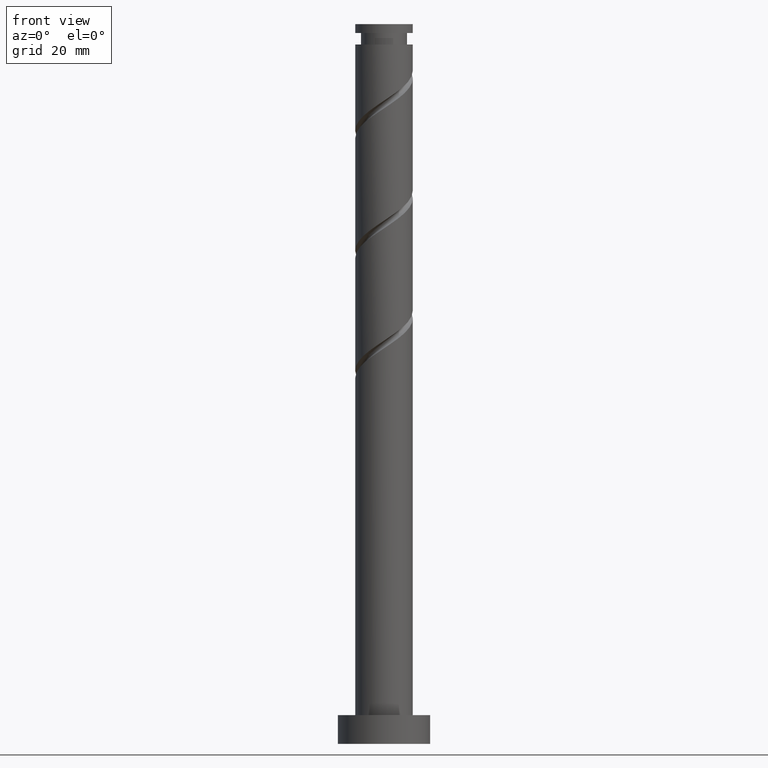
[diagram: clean part render]
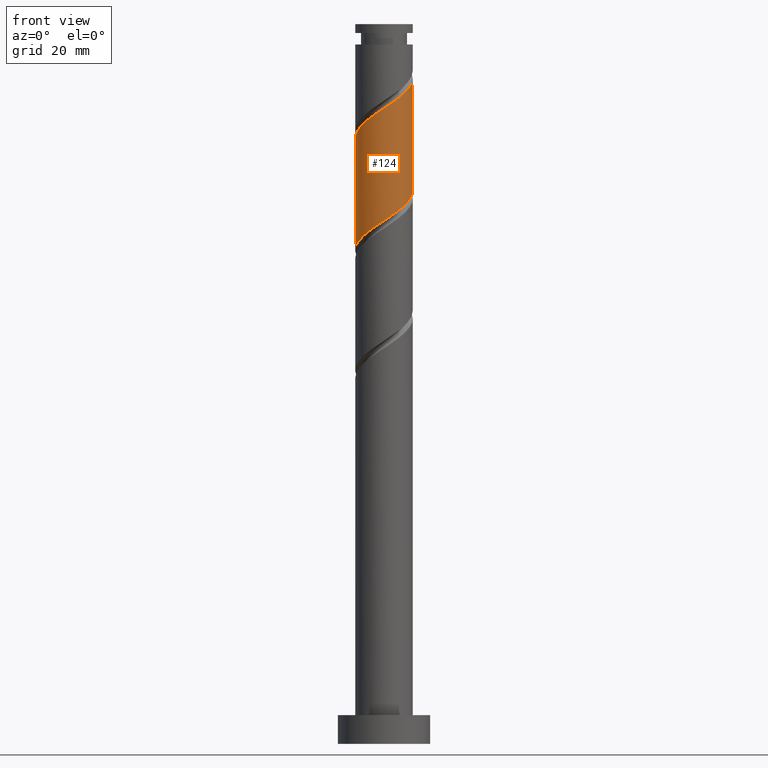
[diagram: same view with one face highlighted and labeled with its STEP entity id]
A machine part, front view. The second image highlights one B-rep face of the part: STEP entity #124.
In plain terms, the highlighted cylindrical surface (edge-blend (fillet) strip) has radius 5 mm, axis along (-0, -0, -1).
Its self-contained STEP definition (entity closure, byte-faithful):
#38 = VECTOR ( 'NONE', #793, 1000.000000000000000 ) ;
#84 = CARTESIAN_POINT ( 'NONE',  ( 1.771071194696850037, -4.742409471643930452, 111.5590371129979559 ) ) ;
#93 = CARTESIAN_POINT ( 'NONE',  ( -5.000000000000006217, -0.5025189076296163737, 105.4993725802688829 ) ) ;
#107 = EDGE_LOOP ( 'NONE', ( #327, #1390, #160, #1034 ) ) ;
#118 = CARTESIAN_POINT ( 'NONE',  ( 4.220345042522133383, -2.795680327841834956, 113.6423704463312845 ) ) ;
#122 = CARTESIAN_POINT ( 'NONE',  ( 4.352708902590734397, -2.460472558129309206, 94.37153711299794168 ) ) ;
#124 = ADVANCED_FACE ( 'NONE', ( #357 ), #1198, .T. ) ;
#160 = ORIENTED_EDGE ( 'NONE', *, *, #578, .T. ) ;
#202 = CARTESIAN_POINT ( 'NONE',  ( -5.000000000000000888, 0.000000000000000000, 125.0000000000000000 ) ) ;
#212 = CARTESIAN_POINT ( 'NONE',  ( -4.742409471643930452, -1.771071194696850259, 106.3507037796645989 ) ) ;
#218 = CARTESIAN_POINT ( 'NONE',  ( 4.742409471643924235, -1.771071194696849815, 94.89237044633128448 ) ) ;
#222 = CARTESIAN_POINT ( 'NONE',  ( 4.967644957101780001, -0.5678939867451784362, 115.2048704463312703 ) ) ;
#226 = CARTESIAN_POINT ( 'NONE',  ( 1.354691653006744989, -4.877699385847468427, 91.76737044633128448 ) ) ;
#236 = CARTESIAN_POINT ( 'NONE',  ( -3.379344330689691756, -3.685109482041953211, 107.9132037796646131 ) ) ;
#258 = DIRECTION ( 'NONE',  ( -0.000000000000000000, -0.000000000000000000, -1.000000000000000000 ) ) ;
#271 = CARTESIAN_POINT ( 'NONE',  ( -5.000000000000000000, 6.686923841309805221E-15, 85.66133955446819925 ) ) ;
#279 = CARTESIAN_POINT ( 'NONE',  ( -4.877699385847470204, -1.354691653006745433, 86.55903711299792747 ) ) ;
#315 = LINE ( 'NONE', #202, #38 ) ;
#327 = ORIENTED_EDGE ( 'NONE', *, *, #809, .F. ) ;
#344 = CARTESIAN_POINT ( 'NONE',  ( 2.795680327841830515, -4.220345042522129830, 92.80903711299794168 ) ) ;
#352 = CARTESIAN_POINT ( 'NONE',  ( -1.771071194696849149, -4.742409471643924235, 89.68403711299794168 ) ) ;
#356 = CARTESIAN_POINT ( 'NONE',  ( -2.075185990424292193, -4.549022214184804014, 108.9548704463312845 ) ) ;
#357 = FACE_OUTER_BOUND ( 'NONE', #107, .T. ) ;
#379 = LINE ( 'NONE', #840, #1461 ) ;
#417 = CARTESIAN_POINT ( 'NONE',  ( -4.220345042522129830, -2.795680327841830515, 87.60070377966461308 ) ) ;
#459 = CARTESIAN_POINT ( 'NONE',  ( -1.354691653006748320, -4.877699385847474645, 109.4757037796646415 ) ) ;
#469 = CARTESIAN_POINT ( 'NONE',  ( 0.000000000000000000, 0.000000000000000000, 125.0000000000000000 ) ) ;
#472 = CARTESIAN_POINT ( 'NONE',  ( -0.9949874371066216305, -4.900000000000000355, 90.20487044633125606 ) ) ;
#516 = CARTESIAN_POINT ( 'NONE',  ( -5.000000000000000000, -0.2848686872321604668, 85.85085064367548568 ) ) ;
#531 = CARTESIAN_POINT ( 'NONE',  ( 5.000000000000007994, 2.129020595215218140E-15, 115.5817346715276699 ) ) ;
#566 = CARTESIAN_POINT ( 'NONE',  ( -2.795680327841834512, -4.220345042522133383, 108.4340371129979275 ) ) ;
#578 = EDGE_CURVE ( 'NONE', #1042, #1304, #315, .T. ) ;
#587 = VERTEX_POINT ( 'NONE', #1281 ) ;
#589 = CARTESIAN_POINT ( 'NONE',  ( 5.000000000000007994, -0.2848686872321627428, 115.3922235823203835 ) ) ;
#594 = CARTESIAN_POINT ( 'NONE',  ( 3.379344330689686426, -3.685109482041949658, 93.32987044633127027 ) ) ;
#608 = DIRECTION ( 'NONE',  ( -0.000000000000000000, -0.000000000000000000, -1.000000000000000000 ) ) ;
#639 = CARTESIAN_POINT ( 'NONE',  ( -3.685109482041949658, -3.379344330689686426, 88.12153711299797010 ) ) ;
#687 = AXIS2_PLACEMENT_3D ( 'NONE', #469, #608, #1092 ) ;
#697 = CARTESIAN_POINT ( 'NONE',  ( 3.963008333537541894, -3.149873921561769041, 93.85070377966461308 ) ) ;
#701 = CARTESIAN_POINT ( 'NONE',  ( -5.000000000000008882, -2.848689528809094394E-15, 105.1650680048610411 ) ) ;
#703 = EDGE_CURVE ( 'NONE', #587, #1304, #988, .T. ) ;
#706 = CARTESIAN_POINT ( 'NONE',  ( 0.5678939867451756607, -4.967644957101771119, 91.24653711299791325 ) ) ;
#758 = CARTESIAN_POINT ( 'NONE',  ( -4.967644957101771119, -0.5678939867451757717, 86.03820377966458466 ) ) ;
#793 = DIRECTION ( 'NONE',  ( -0.000000000000000000, -0.000000000000000000, -1.000000000000000000 ) ) ;
#806 = CARTESIAN_POINT ( 'NONE',  ( 4.900000000000000355, -0.9949874371066218526, 95.41320377966458466 ) ) ;
#809 = EDGE_CURVE ( 'NONE', #973, #587, #379, .T. ) ;
#822 = CARTESIAN_POINT ( 'NONE',  ( 2.460472558129310983, -4.352708902590739726, 112.0798704463312703 ) ) ;
#840 = CARTESIAN_POINT ( 'NONE',  ( 5.000000000000000888, 6.123233995736767268E-16, 125.0000000000000000 ) ) ;
#929 =( BOUNDED_CURVE ( )  B_SPLINE_CURVE ( 2, ( #1560, #93, #1164, #212, #1445, #1319, #236, #566, #356, #459, #930, #1453, #1545, #84, #822, #1315, #1420, #118, #1178, #1061, #222, #589, #1076 ),
 .UNSPECIFIED., .F., .T. ) 
 B_SPLINE_CURVE_WITH_KNOTS ( ( 3, 2, 2, 2, 2, 2, 2, 2, 2, 2, 2, 3 ),
 ( 0.5545322023138553602, 0.5625000000000000000, 0.5749999999999999556, 0.5875000000000000222, 0.5999999999999999778, 0.6125000000000000444, 0.6250000000000000000, 0.6374999999999999556, 0.6500000000000000222, 0.6624999999999999778, 0.6750000000000000444, 0.6795322023138552492 ),
 .UNSPECIFIED. ) 
 CURVE ( )  GEOMETRIC_REPRESENTATION_ITEM ( )  RATIONAL_B_SPLINE_CURVE ( ( 0.9039174447099376231, 0.9019565955404671431, 0.9090909090909153889, 0.8978984914501314529, 0.9090909090909153889, 0.8978984914501314529, 0.9090909090909153889, 0.8978984914501314529, 0.9090909090909153889, 0.8978984914501314529, 0.9090909090909153889, 0.8978984914501314529, 0.9090909090909153889, 0.8978984914501314529, 0.9090909090909153889, 0.8978984914501314529, 0.9090909090909153889, 0.8978984914501314529, 0.9090909090909153889, 0.8978984914501314529, 0.9090909090909153889, 0.9050328050005798097, 0.9039174447099376231 ) ) 
 REPRESENTATION_ITEM ( '' )  );
#930 = CARTESIAN_POINT ( 'NONE',  ( -0.5678939867451784362, -4.967644957101780001, 109.9965371129979275 ) ) ;
#973 = VERTEX_POINT ( 'NONE', #531 ) ;
#988 =( BOUNDED_CURVE ( )  B_SPLINE_CURVE ( 2, ( #1066, #1427, #806, #218, #122, #697, #594, #344, #1311, #226, #706, #1563, #472, #352, #1302, #1511, #639, #417, #1250, #279, #758, #516, #1006 ),
 .UNSPECIFIED., .F., .T. ) 
 B_SPLINE_CURVE_WITH_KNOTS ( ( 3, 2, 2, 2, 2, 2, 2, 2, 2, 2, 2, 3 ),
 ( 0.5545322023138551382, 0.5625000000000000000, 0.5749999999999999556, 0.5875000000000000222, 0.5999999999999999778, 0.6125000000000000444, 0.6250000000000000000, 0.6374999999999999556, 0.6500000000000000222, 0.6624999999999999778, 0.6750000000000000444, 0.6795322023138552492 ),
 .UNSPECIFIED. ) 
 CURVE ( )  GEOMETRIC_REPRESENTATION_ITEM ( )  RATIONAL_B_SPLINE_CURVE ( ( 0.9039174447099327381, 0.9019565955404620361, 0.9090909090909105039, 0.8978984914501265679, 0.9090909090909105039, 0.8978984914501265679, 0.9090909090909105039, 0.8978984914501265679, 0.9090909090909105039, 0.8978984914501265679, 0.9090909090909105039, 0.8978984914501265679, 0.9090909090909105039, 0.8978984914501265679, 0.9090909090909105039, 0.8978984914501265679, 0.9090909090909105039, 0.8978984914501265679, 0.9090909090909105039, 0.8978984914501265679, 0.9090909090909105039, 0.9050328050005749247, 0.9039174447099327381 ) ) 
 REPRESENTATION_ITEM ( '' )  );
#1006 = CARTESIAN_POINT ( 'NONE',  ( -5.000000000000000000, 6.686923841309805221E-15, 85.66133955446819925 ) ) ;
#1034 = ORIENTED_EDGE ( 'NONE', *, *, #703, .F. ) ;
#1042 = VERTEX_POINT ( 'NONE', #701 ) ;
#1061 = CARTESIAN_POINT ( 'NONE',  ( 4.877699385847474645, -1.354691653006748986, 114.6840371129979559 ) ) ;
#1066 = CARTESIAN_POINT ( 'NONE',  ( 5.000000000000000888, 6.686923841309805221E-15, 96.07800622113487066 ) ) ;
#1076 = CARTESIAN_POINT ( 'NONE',  ( 5.000000000000007994, 2.129020595215218140E-15, 115.5817346715276699 ) ) ;
#1092 = DIRECTION ( 'NONE',  ( -1.000000000000000000, 0.000000000000000000, 0.000000000000000000 ) ) ;
#1164 = CARTESIAN_POINT ( 'NONE',  ( -4.900000000000005684, -0.9949874371066214085, 105.8298704463312703 ) ) ;
#1178 = CARTESIAN_POINT ( 'NONE',  ( 4.549022214184804014, -2.075185990424292193, 114.1632037796646131 ) ) ;
#1198 = CYLINDRICAL_SURFACE ( 'NONE', #687, 5.000000000000000888 ) ;
#1213 = EDGE_CURVE ( 'NONE', #1042, #973, #929, .T. ) ;
#1250 = CARTESIAN_POINT ( 'NONE',  ( -4.549022214184799573, -2.075185990424287308, 87.07987044633127027 ) ) ;
#1281 = CARTESIAN_POINT ( 'NONE',  ( 5.000000000000000888, 6.686923841309805221E-15, 96.07800622113487066 ) ) ;
#1302 = CARTESIAN_POINT ( 'NONE',  ( -2.460472558129308762, -4.352708902590734397, 89.16320377966462729 ) ) ;
#1304 = VERTEX_POINT ( 'NONE', #271 ) ;
#1311 = CARTESIAN_POINT ( 'NONE',  ( 2.075185990424287308, -4.549022214184799573, 92.28820377966459887 ) ) ;
#1315 = CARTESIAN_POINT ( 'NONE',  ( 3.149873921561772150, -3.963008333537549444, 112.6007037796646131 ) ) ;
#1319 = CARTESIAN_POINT ( 'NONE',  ( -3.963008333537548999, -3.149873921561772150, 107.3923704463312703 ) ) ;
#1390 = ORIENTED_EDGE ( 'NONE', *, *, #1213, .F. ) ;
#1420 = CARTESIAN_POINT ( 'NONE',  ( 3.685109482041953211, -3.379344330689691756, 113.1215371129979275 ) ) ;
#1427 = CARTESIAN_POINT ( 'NONE',  ( 5.000000000000000888, -0.5025189076296037172, 95.74370164572704311 ) ) ;
#1445 = CARTESIAN_POINT ( 'NONE',  ( -4.352708902590739726, -2.460472558129311427, 106.8715371129979417 ) ) ;
#1453 = CARTESIAN_POINT ( 'NONE',  ( 0.2189036795163920024, -5.057590528356085358, 110.5173704463312845 ) ) ;
#1461 = VECTOR ( 'NONE', #258, 1000.000000000000000 ) ;
#1511 = CARTESIAN_POINT ( 'NONE',  ( -3.149873921561768597, -3.963008333537541894, 88.64237044633125606 ) ) ;
#1545 = CARTESIAN_POINT ( 'NONE',  ( 0.9949874371066210754, -4.900000000000005684, 111.0382037796645989 ) ) ;
#1560 = CARTESIAN_POINT ( 'NONE',  ( -5.000000000000009770, -2.848689528809094788E-15, 105.1650680048610411 ) ) ;
#1563 = CARTESIAN_POINT ( 'NONE',  ( -0.2189036795163937787, -5.057590528356077364, 90.72570377966459887 ) ) ;